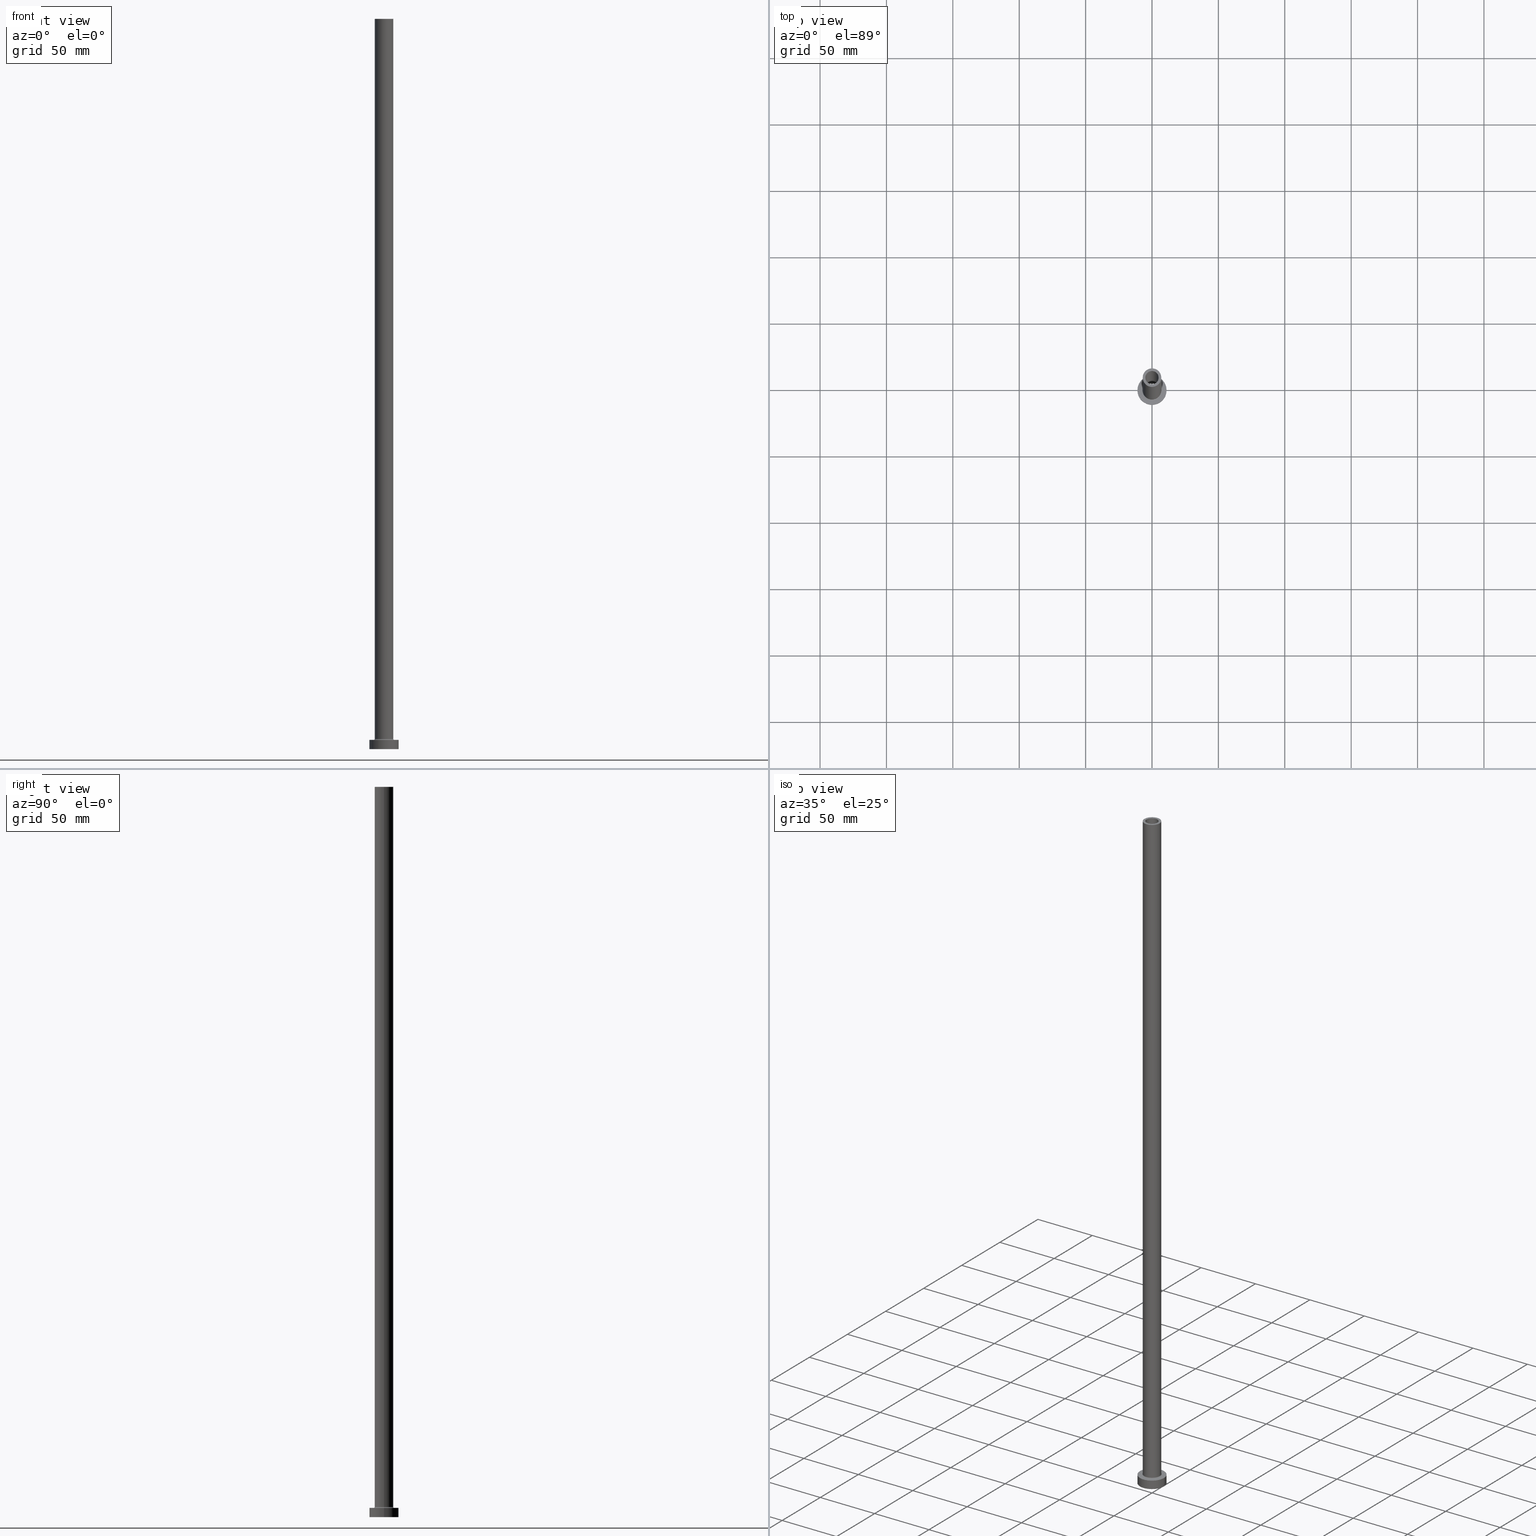
[diagram: canonical four-view strip — front | top / right | iso, engineering-drawing reading convention]
A machine part, canonical four-view strip (front | top / right | iso — engineering-drawing reading convention). The complete STEP part file that produces these views, byte-faithful:
ISO-10303-21;
HEADER;
FILE_DESCRIPTION (( 'STEP AP203' ),
    '1' );
FILE_NAME ('aa0b.STEP',
    '2023-02-13T10:05:54',
    ( '' ),
    ( '' ),
    'SwSTEP 2.0',
    'SolidWorks 2019',
    '' );
FILE_SCHEMA (( 'CONFIG_CONTROL_DESIGN' ));
ENDSEC;

DATA;
#1 = CYLINDRICAL_SURFACE ( 'NONE', #26, 7.000000000000000888 ) ;
#2 = DIRECTION ( 'NONE',  ( 1.000000000000000000, 0.000000000000000000, 0.000000000000000000 ) ) ;
#3 = CARTESIAN_POINT ( 'NONE',  ( 0.000000000000000000, 0.000000000000000000, 519.5663996924428147 ) ) ;
#4 = ORIENTED_EDGE ( 'NONE', *, *, #81, .T. ) ;
#5 =( GEOMETRIC_REPRESENTATION_CONTEXT ( 3 ) GLOBAL_UNCERTAINTY_ASSIGNED_CONTEXT ( ( #76 ) ) GLOBAL_UNIT_ASSIGNED_CONTEXT ( ( #242, #313, #129 ) ) REPRESENTATION_CONTEXT ( 'NONE', 'WORKASPACE' ) );
#6 = CARTESIAN_POINT ( 'NONE',  ( 0.000000000000000000, 0.000000000000000000, 505.0000000000000000 ) ) ;
#7 = CC_DESIGN_PERSON_AND_ORGANIZATION_ASSIGNMENT ( #439, #302, ( #15 ) ) ;
#8 = ORIENTED_EDGE ( 'NONE', *, *, #177, .T. ) ;
#9 = DIRECTION ( 'NONE',  ( 0.000000000000000000, 0.000000000000000000, 1.000000000000000000 ) ) ;
#10 = PERSON_AND_ORGANIZATION ( #275, #182 ) ;
#11 = ORIENTED_EDGE ( 'NONE', *, *, #377, .F. ) ;
#12 = COORDINATED_UNIVERSAL_TIME_OFFSET ( 1, 0, .AHEAD. ) ;
#13 = DIRECTION ( 'NONE',  ( 1.000000000000000000, 0.000000000000000000, -0.000000000000000000 ) ) ;
#14 = ADVANCED_FACE ( 'NONE', ( #134 ), #322, .F. ) ;
#15 = PRODUCT ( 'aa0b', 'aa0b', '', ( #158 ) ) ;
#16 = APPLICATION_CONTEXT ( 'configuration controlled 3d designs of mechanical parts and assemblies' ) ;
#17 = CIRCLE ( 'NONE', #260, 5.150000000000001243 ) ;
#18 = VECTOR ( 'NONE', #258, 1000.000000000000000 ) ;
#19 = APPLICATION_PROTOCOL_DEFINITION ( 'international standard', 'config_control_design', 1994, #16 ) ;
#20 = ORIENTED_EDGE ( 'NONE', *, *, #248, .T. ) ;
#21 = CALENDAR_DATE ( 2023, 13, 2 ) ;
#22 = DIRECTION ( 'NONE',  ( 1.000000000000000000, 0.000000000000000000, 0.000000000000000000 ) ) ;
#23 = ORIENTED_EDGE ( 'NONE', *, *, #363, .T. ) ;
#24 = CALENDAR_DATE ( 2023, 13, 2 ) ;
#25 = FACE_OUTER_BOUND ( 'NONE', #411, .T. ) ;
#26 = AXIS2_PLACEMENT_3D ( 'NONE', #291, #214, #427 ) ;
#27 = ADVANCED_FACE ( 'NONE', ( #33 ), #1, .T. ) ;
#28 = DIRECTION ( 'NONE',  ( 1.000000000000000000, 0.000000000000000000, 0.000000000000000000 ) ) ;
#29 = CARTESIAN_POINT ( 'NONE',  ( 0.000000000000000000, 0.000000000000000000, 505.0000000000000000 ) ) ;
#30 = VERTEX_POINT ( 'NONE', #167 ) ;
#31 = ORIENTED_EDGE ( 'NONE', *, *, #157, .T. ) ;
#32 = ORIENTED_EDGE ( 'NONE', *, *, #164, .T. ) ;
#33 = FACE_OUTER_BOUND ( 'NONE', #266, .T. ) ;
#34 = PERSON_AND_ORGANIZATION ( #275, #182 ) ;
#35 = CIRCLE ( 'NONE', #294, 5.000000000000000000 ) ;
#36 = DIRECTION ( 'NONE',  ( 0.000000000000000000, 0.000000000000000000, 1.000000000000000000 ) ) ;
#37 = CARTESIAN_POINT ( 'NONE',  ( 0.000000000000000000, 0.000000000000000000, 505.0000000000000000 ) ) ;
#38 = DIRECTION ( 'NONE',  ( 1.000000000000000000, 0.000000000000000000, -0.000000000000000000 ) ) ;
#39 = ADVANCED_FACE ( 'NONE', ( #105, #317 ), #454, .T. ) ;
#40 = PLANE ( 'NONE',  #110 ) ;
#41 = DIRECTION ( 'NONE',  ( -1.000000000000000000, 0.000000000000000000, 0.000000000000000000 ) ) ;
#42 = ORIENTED_EDGE ( 'NONE', *, *, #377, .T. ) ;
#43 = CARTESIAN_POINT ( 'NONE',  ( 0.000000000000000000, 0.000000000000000000, 519.5663996924428147 ) ) ;
#44 = EDGE_CURVE ( 'NONE', #196, #328, #87, .T. ) ;
#45 = ORIENTED_EDGE ( 'NONE', *, *, #89, .F. ) ;
#46 = CARTESIAN_POINT ( 'NONE',  ( -5.000000000000000000, 0.000000000000000000, 550.0000000000000000 ) ) ;
#47 = DIRECTION ( 'NONE',  ( -1.000000000000000000, 0.000000000000000000, 0.000000000000000000 ) ) ;
#48 = VECTOR ( 'NONE', #223, 1000.000000000000000 ) ;
#49 = FACE_OUTER_BOUND ( 'NONE', #63, .T. ) ;
#50 = ADVANCED_FACE ( 'NONE', ( #456 ), #136, .T. ) ;
#51 = CARTESIAN_POINT ( 'NONE',  ( 0.000000000000000000, 0.000000000000000000, 7.000000000000000000 ) ) ;
#52 = ORIENTED_EDGE ( 'NONE', *, *, #44, .F. ) ;
#53 = AXIS2_PLACEMENT_3D ( 'NONE', #171, #97, #383 ) ;
#54 = AXIS2_PLACEMENT_3D ( 'NONE', #72, #75, #257 ) ;
#55 = DIRECTION ( 'NONE',  ( 0.000000000000000000, 0.000000000000000000, 1.000000000000000000 ) ) ;
#56 = ADVANCED_FACE ( 'NONE', ( #327 ), #424, .F. ) ;
#57 = ORIENTED_EDGE ( 'NONE', *, *, #137, .F. ) ;
#58 = APPROVAL_STATUS ( 'not_yet_approved' ) ;
#59 = FACE_BOUND ( 'NONE', #449, .T. ) ;
#60 = EDGE_LOOP ( 'NONE', ( #372, #31, #280, #77 ) ) ;
#61 = DIRECTION ( 'NONE',  ( 1.000000000000000000, 0.000000000000000000, -0.000000000000000000 ) ) ;
#62 = AXIS2_PLACEMENT_3D ( 'NONE', #68, #213, #70 ) ;
#63 = EDGE_LOOP ( 'NONE', ( #295, #23, #8, #441 ) ) ;
#64 = APPROVAL ( #58, 'NEUR�EN�' ) ;
#65 = APPROVAL_STATUS ( 'not_yet_approved' ) ;
#66 = ORIENTED_EDGE ( 'NONE', *, *, #461, .T. ) ;
#67 = CIRCLE ( 'NONE', #202, 7.000000000000000888 ) ;
#68 = CARTESIAN_POINT ( 'NONE',  ( 0.000000000000000000, 0.000000000000000000, 0.000000000000000000 ) ) ;
#69 = ORIENTED_EDGE ( 'NONE', *, *, #157, .F. ) ;
#70 = DIRECTION ( 'NONE',  ( 1.000000000000000000, 0.000000000000000000, 0.000000000000000000 ) ) ;
#71 = EDGE_CURVE ( 'NONE', #339, #328, #193, .T. ) ;
#72 = CARTESIAN_POINT ( 'NONE',  ( 0.000000000000000000, 0.000000000000000000, 550.0000000000000000 ) ) ;
#73 = ORIENTED_EDGE ( 'NONE', *, *, #420, .F. ) ;
#74 = EDGE_CURVE ( 'NONE', #349, #382, #370, .T. ) ;
#75 = DIRECTION ( 'NONE',  ( 0.000000000000000000, 0.000000000000000000, 1.000000000000000000 ) ) ;
#76 = UNCERTAINTY_MEASURE_WITH_UNIT (LENGTH_MEASURE( 1.000000000000000082E-05 ), #242, 'distance_accuracy_value', 'NONE');
#77 = ORIENTED_EDGE ( 'NONE', *, *, #203, .F. ) ;
#78 = CARTESIAN_POINT ( 'NONE',  ( 0.000000000000000000, 0.000000000000000000, 7.700000000000040146 ) ) ;
#79 = DIRECTION ( 'NONE',  ( 0.000000000000000000, 0.000000000000000000, -1.000000000000000000 ) ) ;
#80 = CARTESIAN_POINT ( 'NONE',  ( -5.000000000000000000, 0.000000000000000000, 505.0000000000000000 ) ) ;
#81 = EDGE_CURVE ( 'NONE', #196, #396, #184, .T. ) ;
#82 = DATE_AND_TIME ( #232, #218 ) ;
#83 = ORIENTED_EDGE ( 'NONE', *, *, #305, .F. ) ;
#84 = ORIENTED_EDGE ( 'NONE', *, *, #248, .F. ) ;
#85 = COORDINATED_UNIVERSAL_TIME_OFFSET ( 1, 0, .AHEAD. ) ;
#86 = ORIENTED_EDGE ( 'NONE', *, *, #153, .T. ) ;
#87 = CIRCLE ( 'NONE', #53, 0.7000000000000000666 ) ;
#88 = DIRECTION ( 'NONE',  ( 0.000000000000000000, 0.000000000000000000, 1.000000000000000000 ) ) ;
#89 = EDGE_CURVE ( 'NONE', #274, #169, #346, .T. ) ;
#90 = FACE_BOUND ( 'NONE', #162, .T. ) ;
#91 = VERTEX_POINT ( 'NONE', #289 ) ;
#92 = CARTESIAN_POINT ( 'NONE',  ( -5.150000000000001243, 0.000000000000000000, 519.5663996924428147 ) ) ;
#93 = CC_DESIGN_DATE_AND_TIME_ASSIGNMENT ( #82, #367, ( #319 ) ) ;
#94 = DIRECTION ( 'NONE',  ( 0.000000000000000000, 0.000000000000000000, -1.000000000000000000 ) ) ;
#95 = VERTEX_POINT ( 'NONE', #208 ) ;
#96 = DIRECTION ( 'NONE',  ( -0.000000000000000000, -0.000000000000000000, -1.000000000000000000 ) ) ;
#97 = DIRECTION ( 'NONE',  ( 1.224646799147353207E-16, 1.000000000000000000, -0.000000000000000000 ) ) ;
#98 = DATE_AND_TIME ( #412, #191 ) ;
#99 = CARTESIAN_POINT ( 'NONE',  ( 0.000000000000000000, 0.000000000000000000, 7.000000000000000000 ) ) ;
#100 = CC_DESIGN_PERSON_AND_ORGANIZATION_ASSIGNMENT ( #442, #444, ( #259 ) ) ;
#101 = ORIENTED_EDGE ( 'NONE', *, *, #137, .T. ) ;
#102 = DIRECTION ( 'NONE',  ( 1.000000000000000000, 0.000000000000000000, 0.000000000000000000 ) ) ;
#103 = EDGE_CURVE ( 'NONE', #406, #154, #400, .T. ) ;
#104 = ORIENTED_EDGE ( 'NONE', *, *, #420, .T. ) ;
#105 = FACE_BOUND ( 'NONE', #446, .T. ) ;
#106 = DIRECTION ( 'NONE',  ( 0.000000000000000000, 0.000000000000000000, 1.000000000000000000 ) ) ;
#107 = APPLICATION_CONTEXT ( 'configuration controlled 3d designs of mechanical parts and assemblies' ) ;
#108 = EDGE_LOOP ( 'NONE', ( #69, #207, #212, #160 ) ) ;
#109 = AXIS2_PLACEMENT_3D ( 'NONE', #388, #384, #389 ) ;
#110 = AXIS2_PLACEMENT_3D ( 'NONE', #51, #263, #13 ) ;
#111 = DIRECTION ( 'NONE',  ( 0.000000000000000000, 0.000000000000000000, 1.000000000000000000 ) ) ;
#112 = ORIENTED_EDGE ( 'NONE', *, *, #153, .F. ) ;
#113 = CYLINDRICAL_SURFACE ( 'NONE', #308, 11.00000000000000000 ) ;
#114 = VERTEX_POINT ( 'NONE', #318 ) ;
#115 = FACE_OUTER_BOUND ( 'NONE', #108, .T. ) ;
#116 = CIRCLE ( 'NONE', #211, 5.150000000000001243 ) ;
#117 = EDGE_CURVE ( 'NONE', #95, #378, #364, .T. ) ;
#118 = PERSON_AND_ORGANIZATION ( #275, #182 ) ;
#119 = ORIENTED_EDGE ( 'NONE', *, *, #74, .T. ) ;
#120 = EDGE_LOOP ( 'NONE', ( #394, #32 ) ) ;
#121 = COORDINATED_UNIVERSAL_TIME_OFFSET ( 1, 0, .AHEAD. ) ;
#122 = PERSON_AND_ORGANIZATION_ROLE ( 'classification_officer' ) ;
#123 = LOCAL_TIME ( 11, 5, 54.00000000000000000, #268 ) ;
#124 = FACE_OUTER_BOUND ( 'NONE', #198, .T. ) ;
#125 = AXIS2_PLACEMENT_3D ( 'NONE', #99, #176, #102 ) ;
#126 = CALENDAR_DATE ( 2023, 13, 2 ) ;
#127 = CARTESIAN_POINT ( 'NONE',  ( 0.000000000000000000, 0.000000000000000000, 7.000000000000000000 ) ) ;
#128 = EDGE_LOOP ( 'NONE', ( #265, #42, #264, #179 ) ) ;
#129 =( NAMED_UNIT ( * ) SI_UNIT ( $, .STERADIAN. ) SOLID_ANGLE_UNIT ( ) );
#130 = DIRECTION ( 'NONE',  ( -0.000000000000000000, -0.000000000000000000, -1.000000000000000000 ) ) ;
#131 = CLOSED_SHELL ( 'NONE', ( #14, #399, #347, #27, #352, #50, #413, #255, #227, #39, #323, #448, #237, #56 ) ) ;
#132 = CIRCLE ( 'NONE', #279, 5.150000000000001243 ) ;
#133 = CARTESIAN_POINT ( 'NONE',  ( 11.00000000000000000, 1.347111479062088405E-15, 7.000000000000000000 ) ) ;
#134 = FACE_OUTER_BOUND ( 'NONE', #128, .T. ) ;
#135 = DIRECTION ( 'NONE',  ( 0.000000000000000000, 0.000000000000000000, 1.000000000000000000 ) ) ;
#136 = CYLINDRICAL_SURFACE ( 'NONE', #337, 11.00000000000000000 ) ;
#137 = EDGE_CURVE ( 'NONE', #396, #196, #67, .T. ) ;
#138 = DIRECTION ( 'NONE',  ( -1.000000000000000000, 0.000000000000000000, 0.000000000000000000 ) ) ;
#139 = ORIENTED_EDGE ( 'NONE', *, *, #366, .F. ) ;
#140 = AXIS2_PLACEMENT_3D ( 'NONE', #142, #455, #138 ) ;
#141 = CARTESIAN_POINT ( 'NONE',  ( 0.000000000000000000, 0.000000000000000000, 7.000000000000000000 ) ) ;
#142 = CARTESIAN_POINT ( 'NONE',  ( 0.000000000000000000, 0.000000000000000000, 550.0000000000000000 ) ) ;
#143 = CARTESIAN_POINT ( 'NONE',  ( 0.000000000000000000, 0.000000000000000000, 7.700000000000040146 ) ) ;
#144 = LINE ( 'NONE', #402, #452 ) ;
#145 = CC_DESIGN_PERSON_AND_ORGANIZATION_ASSIGNMENT ( #118, #270, ( #319 ) ) ;
#146 = FACE_OUTER_BOUND ( 'NONE', #387, .T. ) ;
#147 = EDGE_LOOP ( 'NONE', ( #11, #311, #373, #288 ) ) ;
#148 = CIRCLE ( 'NONE', #358, 11.00000000000000000 ) ;
#149 = DIRECTION ( 'NONE',  ( -0.000000000000000000, -0.000000000000000000, -1.000000000000000000 ) ) ;
#150 = CARTESIAN_POINT ( 'NONE',  ( 0.000000000000000000, 0.000000000000000000, 550.0000000000000000 ) ) ;
#151 = ORIENTED_EDGE ( 'NONE', *, *, #71, .F. ) ;
#152 = APPROVAL_DATE_TIME ( #261, #386 ) ;
#153 = EDGE_CURVE ( 'NONE', #183, #217, #175, .T. ) ;
#154 = VERTEX_POINT ( 'NONE', #355 ) ;
#155 = APPROVAL_ROLE ( '' ) ;
#156 = AXIS2_PLACEMENT_3D ( 'NONE', #163, #88, #61 ) ;
#157 = EDGE_CURVE ( 'NONE', #114, #274, #324, .T. ) ;
#158 = MECHANICAL_CONTEXT ( 'NONE', #16, 'mechanical' ) ;
#159 = DIRECTION ( 'NONE',  ( 0.000000000000000000, 0.000000000000000000, 1.000000000000000000 ) ) ;
#160 = ORIENTED_EDGE ( 'NONE', *, *, #186, .T. ) ;
#161 = DIRECTION ( 'NONE',  ( 0.000000000000000000, 0.000000000000000000, 1.000000000000000000 ) ) ;
#162 = EDGE_LOOP ( 'NONE', ( #361, #45 ) ) ;
#163 = CARTESIAN_POINT ( 'NONE',  ( 0.000000000000000000, 0.000000000000000000, 505.0000000000000000 ) ) ;
#164 = EDGE_CURVE ( 'NONE', #210, #30, #148, .T. ) ;
#165 = CC_DESIGN_APPROVAL ( #284, ( #437 ) ) ;
#166 = VECTOR ( 'NONE', #201, 1000.000000000000000 ) ;
#167 = CARTESIAN_POINT ( 'NONE',  ( -11.00000000000000000, 0.000000000000000000, 7.000000000000000000 ) ) ;
#168 = DIRECTION ( 'NONE',  ( 1.000000000000000000, 0.000000000000000000, 0.000000000000000000 ) ) ;
#169 = VERTEX_POINT ( 'NONE', #244 ) ;
#170 = DIRECTION ( 'NONE',  ( 1.000000000000000000, 0.000000000000000000, 0.000000000000000000 ) ) ;
#171 = CARTESIAN_POINT ( 'NONE',  ( -7.700000000000001066, 9.429780353434621002E-16, 7.700000000000040146 ) ) ;
#172 = DIRECTION ( 'NONE',  ( 0.000000000000000000, 0.000000000000000000, 1.000000000000000000 ) ) ;
#173 = APPROVAL_PERSON_ORGANIZATION ( #34, #284, #344 ) ;
#174 = DIRECTION ( 'NONE',  ( -0.000000000000000000, -0.000000000000000000, -1.000000000000000000 ) ) ;
#175 = CIRCLE ( 'NONE', #459, 11.00000000000000000 ) ;
#176 = DIRECTION ( 'NONE',  ( -0.000000000000000000, -0.000000000000000000, -1.000000000000000000 ) ) ;
#177 = EDGE_CURVE ( 'NONE', #217, #183, #219, .T. ) ;
#178 = FACE_BOUND ( 'NONE', #430, .T. ) ;
#179 = ORIENTED_EDGE ( 'NONE', *, *, #433, .F. ) ;
#180 = CARTESIAN_POINT ( 'NONE',  ( 7.700000000000001066, 0.000000000000000000, 7.000000000000020428 ) ) ;
#181 = DIRECTION ( 'NONE',  ( 1.000000000000000000, 0.000000000000000000, 0.000000000000000000 ) ) ;
#182 = ORGANIZATION ( 'NEUR�EN�', 'NEUR�EN�', '' ) ;
#183 = VERTEX_POINT ( 'NONE', #314 ) ;
#184 = CIRCLE ( 'NONE', #351, 7.000000000000000888 ) ;
#185 = CARTESIAN_POINT ( 'NONE',  ( 0.000000000000000000, 0.000000000000000000, 7.700000000000040146 ) ) ;
#186 = EDGE_CURVE ( 'NONE', #169, #274, #17, .T. ) ;
#187 = APPLICATION_PROTOCOL_DEFINITION ( 'international standard', 'config_control_design', 1994, #107 ) ;
#188 = DIRECTION ( 'NONE',  ( 1.000000000000000000, 0.000000000000000000, 0.000000000000000000 ) ) ;
#189 = DIRECTION ( 'NONE',  ( 0.000000000000000000, 0.000000000000000000, 1.000000000000000000 ) ) ;
#190 = CARTESIAN_POINT ( 'NONE',  ( 0.000000000000000000, 0.000000000000000000, 7.000000000000000000 ) ) ;
#191 = LOCAL_TIME ( 11, 5, 54.00000000000000000, #450 ) ;
#192 = CARTESIAN_POINT ( 'NONE',  ( 0.000000000000000000, 0.000000000000000000, 0.000000000000000000 ) ) ;
#193 = CIRCLE ( 'NONE', #125, 7.700000000000001066 ) ;
#194 = CC_DESIGN_DATE_AND_TIME_ASSIGNMENT ( #409, #205, ( #437 ) ) ;
#195 = CIRCLE ( 'NONE', #316, 7.700000000000001066 ) ;
#196 = VERTEX_POINT ( 'NONE', #375 ) ;
#197 = DIRECTION ( 'NONE',  ( 0.000000000000000000, 0.000000000000000000, -1.000000000000000000 ) ) ;
#198 = EDGE_LOOP ( 'NONE', ( #350, #419 ) ) ;
#199 = APPROVAL_DATE_TIME ( #98, #284 ) ;
#200 = LOCAL_TIME ( 11, 5, 54.00000000000000000, #12 ) ;
#201 = DIRECTION ( 'NONE',  ( -0.000000000000000000, -0.000000000000000000, -1.000000000000000000 ) ) ;
#202 = AXIS2_PLACEMENT_3D ( 'NONE', #321, #421, #457 ) ;
#203 = EDGE_CURVE ( 'NONE', #91, #169, #345, .T. ) ;
#204 = CARTESIAN_POINT ( 'NONE',  ( 0.000000000000000000, 0.000000000000000000, 0.000000000000000000 ) ) ;
#205 = DATE_TIME_ROLE ( 'classification_date' ) ;
#206 = FACE_OUTER_BOUND ( 'NONE', #425, .T. ) ;
#207 = ORIENTED_EDGE ( 'NONE', *, *, #371, .T. ) ;
#208 = CARTESIAN_POINT ( 'NONE',  ( 5.000000000000000000, 6.123233995736766282E-16, 505.0000000000000000 ) ) ;
#209 = PRODUCT_RELATED_PRODUCT_CATEGORY ( 'detail', '', ( #15 ) ) ;
#210 = VERTEX_POINT ( 'NONE', #133 ) ;
#211 = AXIS2_PLACEMENT_3D ( 'NONE', #29, #159, #312 ) ;
#212 = ORIENTED_EDGE ( 'NONE', *, *, #203, .T. ) ;
#213 = DIRECTION ( 'NONE',  ( -0.000000000000000000, -0.000000000000000000, -1.000000000000000000 ) ) ;
#214 = DIRECTION ( 'NONE',  ( -0.000000000000000000, -0.000000000000000000, -1.000000000000000000 ) ) ;
#215 = CARTESIAN_POINT ( 'NONE',  ( 0.000000000000000000, 0.000000000000000000, 550.0000000000000000 ) ) ;
#216 = ADVANCED_BREP_SHAPE_REPRESENTATION ( 'aa0b', ( #267, #293 ), #5 ) ;
#217 = VERTEX_POINT ( 'NONE', #416 ) ;
#218 = LOCAL_TIME ( 11, 5, 54.00000000000000000, #85 ) ;
#219 = CIRCLE ( 'NONE', #392, 11.00000000000000000 ) ;
#220 = CARTESIAN_POINT ( 'NONE',  ( 0.000000000000000000, 0.000000000000000000, 505.0000000000000000 ) ) ;
#221 = EDGE_LOOP ( 'NONE', ( #66, #119 ) ) ;
#222 = DIRECTION ( 'NONE',  ( 0.000000000000000000, 0.000000000000000000, 1.000000000000000000 ) ) ;
#223 = DIRECTION ( 'NONE',  ( -0.000000000000000000, -0.000000000000000000, -1.000000000000000000 ) ) ;
#224 = DIRECTION ( 'NONE',  ( 0.000000000000000000, 0.000000000000000000, -1.000000000000000000 ) ) ;
#225 = EDGE_CURVE ( 'NONE', #91, #114, #116, .T. ) ;
#226 = AXIS2_PLACEMENT_3D ( 'NONE', #281, #36, #38 ) ;
#227 = ADVANCED_FACE ( 'NONE', ( #25 ), #418, .T. ) ;
#228 = ORIENTED_EDGE ( 'NONE', *, *, #343, .T. ) ;
#229 = AXIS2_PLACEMENT_3D ( 'NONE', #150, #111, #181 ) ;
#230 = CIRCLE ( 'NONE', #417, 11.00000000000000000 ) ;
#231 = ORIENTED_EDGE ( 'NONE', *, *, #117, .T. ) ;
#232 = CALENDAR_DATE ( 2023, 13, 2 ) ;
#233 = DIRECTION ( 'NONE',  ( 1.000000000000000000, 0.000000000000000000, -0.000000000000000000 ) ) ;
#234 = EDGE_LOOP ( 'NONE', ( #52, #57, #299, #73 ) ) ;
#235 = PERSON_AND_ORGANIZATION_ROLE ( 'creator' ) ;
#236 = CARTESIAN_POINT ( 'NONE',  ( 5.150000000000001243, 6.306931015608869596E-16, 0.000000000000000000 ) ) ;
#237 = ADVANCED_FACE ( 'NONE', ( #59, #124 ), #269, .F. ) ;
#238 = ORIENTED_EDGE ( 'NONE', *, *, #177, .F. ) ;
#239 = CARTESIAN_POINT ( 'NONE',  ( 0.000000000000000000, 0.000000000000000000, 0.000000000000000000 ) ) ;
#240 = AXIS2_PLACEMENT_3D ( 'NONE', #277, #55, #233 ) ;
#241 = SHAPE_DEFINITION_REPRESENTATION ( #310, #216 ) ;
#242 =( LENGTH_UNIT ( ) NAMED_UNIT ( * ) SI_UNIT ( .MILLI., .METRE. ) );
#243 = DIRECTION ( 'NONE',  ( 0.000000000000000000, -1.000000000000000000, 0.000000000000000000 ) ) ;
#244 = CARTESIAN_POINT ( 'NONE',  ( -5.150000000000001243, 0.000000000000000000, 0.000000000000000000 ) ) ;
#245 = DIRECTION ( 'NONE',  ( 1.000000000000000000, 0.000000000000000000, 0.000000000000000000 ) ) ;
#246 = AXIS2_PLACEMENT_3D ( 'NONE', #37, #282, #170 ) ;
#247 = DIRECTION ( 'NONE',  ( 1.000000000000000000, 0.000000000000000000, 0.000000000000000000 ) ) ;
#248 = EDGE_CURVE ( 'NONE', #382, #196, #408, .T. ) ;
#249 = DIRECTION ( 'NONE',  ( 0.000000000000000000, 0.000000000000000000, -1.000000000000000000 ) ) ;
#250 = CARTESIAN_POINT ( 'NONE',  ( -7.700000000000001066, 9.429780353434621002E-16, 7.000000000000020428 ) ) ;
#251 = AXIS2_PLACEMENT_3D ( 'NONE', #185, #329, #2 ) ;
#252 = VECTOR ( 'NONE', #398, 1000.000000000000000 ) ;
#253 = DESIGN_CONTEXT ( 'detailed design', #107, 'design' ) ;
#254 = ORIENTED_EDGE ( 'NONE', *, *, #44, .T. ) ;
#255 = ADVANCED_FACE ( 'NONE', ( #90, #206 ), #374, .F. ) ;
#256 = LINE ( 'NONE', #296, #252 ) ;
#257 = DIRECTION ( 'NONE',  ( 1.000000000000000000, 0.000000000000000000, 0.000000000000000000 ) ) ;
#258 = DIRECTION ( 'NONE',  ( 0.000000000000000000, 0.000000000000000000, -1.000000000000000000 ) ) ;
#259 = PRODUCT_DEFINITION_FORMATION_WITH_SPECIFIED_SOURCE ( 'LIBOVOLN�', '', #15, .NOT_KNOWN. ) ;
#260 = AXIS2_PLACEMENT_3D ( 'NONE', #239, #130, #22 ) ;
#261 = DATE_AND_TIME ( #24, #368 ) ;
#262 = APPROVAL_DATE_TIME ( #336, #64 ) ;
#263 = DIRECTION ( 'NONE',  ( 0.000000000000000000, 0.000000000000000000, 1.000000000000000000 ) ) ;
#264 = ORIENTED_EDGE ( 'NONE', *, *, #343, .F. ) ;
#265 = ORIENTED_EDGE ( 'NONE', *, *, #103, .T. ) ;
#266 = EDGE_LOOP ( 'NONE', ( #404, #380, #101, #84 ) ) ;
#267 = MANIFOLD_SOLID_BREP ( 'Odebrat vysunut�m4', #131 ) ;
#268 = COORDINATED_UNIVERSAL_TIME_OFFSET ( 1, 0, .AHEAD. ) ;
#269 = PLANE ( 'NONE',  #156 ) ;
#270 = PERSON_AND_ORGANIZATION_ROLE ( 'creator' ) ;
#271 = DIRECTION ( 'NONE',  ( 0.000000000000000000, 0.000000000000000000, 1.000000000000000000 ) ) ;
#272 = EDGE_CURVE ( 'NONE', #396, #339, #315, .T. ) ;
#273 = CARTESIAN_POINT ( 'NONE',  ( -11.00000000000000000, 0.000000000000000000, 7.000000000000000000 ) ) ;
#274 = VERTEX_POINT ( 'NONE', #236 ) ;
#275 = PERSON ( 'NEUR�EN�', 'NEUR�EN�', 'NEUR�EN�', ('NEUR�EN�'), ('NEUR�EN�'), ('NEUR�EN�') ) ;
#276 = ORIENTED_EDGE ( 'NONE', *, *, #103, .F. ) ;
#277 = CARTESIAN_POINT ( 'NONE',  ( 0.000000000000000000, 0.000000000000000000, 0.000000000000000000 ) ) ;
#278 = AXIS2_PLACEMENT_3D ( 'NONE', #215, #172, #168 ) ;
#279 = AXIS2_PLACEMENT_3D ( 'NONE', #220, #222, #188 ) ;
#280 = ORIENTED_EDGE ( 'NONE', *, *, #89, .T. ) ;
#281 = CARTESIAN_POINT ( 'NONE',  ( 0.000000000000000000, 0.000000000000000000, 550.0000000000000000 ) ) ;
#282 = DIRECTION ( 'NONE',  ( 0.000000000000000000, 0.000000000000000000, 1.000000000000000000 ) ) ;
#283 = DIRECTION ( 'NONE',  ( 0.000000000000000000, 0.000000000000000000, 1.000000000000000000 ) ) ;
#284 = APPROVAL ( #65, 'NEUR�EN�' ) ;
#285 = DIRECTION ( 'NONE',  ( -1.000000000000000000, 0.000000000000000000, 0.000000000000000000 ) ) ;
#286 = DIRECTION ( 'NONE',  ( 0.000000000000000000, 0.000000000000000000, -1.000000000000000000 ) ) ;
#287 = EDGE_CURVE ( 'NONE', #30, #183, #379, .T. ) ;
#288 = ORIENTED_EDGE ( 'NONE', *, *, #117, .F. ) ;
#289 = CARTESIAN_POINT ( 'NONE',  ( -5.150000000000001243, 0.000000000000000000, 505.0000000000000000 ) ) ;
#290 = CYLINDRICAL_SURFACE ( 'NONE', #369, 5.150000000000001243 ) ;
#291 = CARTESIAN_POINT ( 'NONE',  ( 0.000000000000000000, 0.000000000000000000, 550.0000000000000000 ) ) ;
#292 = CARTESIAN_POINT ( 'NONE',  ( 7.000000000000000888, 8.572527594031474176E-16, 550.0000000000000000 ) ) ;
#293 = AXIS2_PLACEMENT_3D ( 'NONE', #192, #189, #401 ) ;
#294 = AXIS2_PLACEMENT_3D ( 'NONE', #6, #9, #365 ) ;
#295 = ORIENTED_EDGE ( 'NONE', *, *, #164, .F. ) ;
#296 = CARTESIAN_POINT ( 'NONE',  ( 5.000000000000000000, 6.123233995736766282E-16, 550.0000000000000000 ) ) ;
#297 = SECURITY_CLASSIFICATION_LEVEL ( 'unclassified' ) ;
#298 = DIRECTION ( 'NONE',  ( -0.000000000000000000, -0.000000000000000000, -1.000000000000000000 ) ) ;
#299 = ORIENTED_EDGE ( 'NONE', *, *, #272, .T. ) ;
#300 = APPROVAL_PERSON_ORGANIZATION ( #410, #386, #155 ) ;
#301 = DIRECTION ( 'NONE',  ( 1.000000000000000000, 0.000000000000000000, 0.000000000000000000 ) ) ;
#302 = PERSON_AND_ORGANIZATION_ROLE ( 'design_owner' ) ;
#303 = ORIENTED_EDGE ( 'NONE', *, *, #81, .F. ) ;
#304 = PERSON_AND_ORGANIZATION ( #275, #182 ) ;
#305 = EDGE_CURVE ( 'NONE', #30, #210, #230, .T. ) ;
#306 = APPROVAL_ROLE ( '' ) ;
#307 = DIRECTION ( 'NONE',  ( 1.000000000000000000, 0.000000000000000000, 0.000000000000000000 ) ) ;
#308 = AXIS2_PLACEMENT_3D ( 'NONE', #391, #298, #395 ) ;
#309 = CARTESIAN_POINT ( 'NONE',  ( -7.000000000000000888, 0.000000000000000000, 550.0000000000000000 ) ) ;
#310 = PRODUCT_DEFINITION_SHAPE ( 'NONE', 'NONE',  #319 ) ;
#311 = ORIENTED_EDGE ( 'NONE', *, *, #366, .T. ) ;
#312 = DIRECTION ( 'NONE',  ( 1.000000000000000000, 0.000000000000000000, 0.000000000000000000 ) ) ;
#313 =( NAMED_UNIT ( * ) PLANE_ANGLE_UNIT ( ) SI_UNIT ( $, .RADIAN. ) );
#314 = CARTESIAN_POINT ( 'NONE',  ( -11.00000000000000000, 0.000000000000000000, 0.000000000000000000 ) ) ;
#315 = CIRCLE ( 'NONE', #451, 0.7000000000000000666 ) ;
#316 = AXIS2_PLACEMENT_3D ( 'NONE', #190, #403, #301 ) ;
#317 = FACE_OUTER_BOUND ( 'NONE', #221, .T. ) ;
#318 = CARTESIAN_POINT ( 'NONE',  ( 5.150000000000001243, 6.306931015608869596E-16, 505.0000000000000000 ) ) ;
#319 = PRODUCT_DEFINITION ( 'NEZN�M�', '', #259, #253 ) ;
#320 = CARTESIAN_POINT ( 'NONE',  ( 0.000000000000000000, 0.000000000000000000, 550.0000000000000000 ) ) ;
#321 = CARTESIAN_POINT ( 'NONE',  ( 0.000000000000000000, 0.000000000000000000, 7.700000000000040146 ) ) ;
#322 = CYLINDRICAL_SURFACE ( 'NONE', #429, 5.000000000000000000 ) ;
#323 = ADVANCED_FACE ( 'NONE', ( #447 ), #415, .F. ) ;
#324 = LINE ( 'NONE', #458, #385 ) ;
#325 = APPROVAL_PERSON_ORGANIZATION ( #340, #64, #306 ) ;
#326 = VECTOR ( 'NONE', #94, 1000.000000000000000 ) ;
#327 = FACE_OUTER_BOUND ( 'NONE', #147, .T. ) ;
#328 = VERTEX_POINT ( 'NONE', #250 ) ;
#329 = DIRECTION ( 'NONE',  ( 0.000000000000000000, 0.000000000000000000, 1.000000000000000000 ) ) ;
#330 = CARTESIAN_POINT ( 'NONE',  ( 7.000000000000000888, 8.572527594031474176E-16, 550.0000000000000000 ) ) ;
#331 = AXIS2_PLACEMENT_3D ( 'NONE', #78, #434, #334 ) ;
#332 = ORIENTED_EDGE ( 'NONE', *, *, #71, .T. ) ;
#333 = CC_DESIGN_PERSON_AND_ORGANIZATION_ASSIGNMENT ( #304, #235, ( #259 ) ) ;
#334 = DIRECTION ( 'NONE',  ( 1.000000000000000000, 0.000000000000000000, 0.000000000000000000 ) ) ;
#335 = CARTESIAN_POINT ( 'NONE',  ( -5.000000000000000000, 0.000000000000000000, 550.0000000000000000 ) ) ;
#336 = DATE_AND_TIME ( #21, #200 ) ;
#337 = AXIS2_PLACEMENT_3D ( 'NONE', #422, #174, #285 ) ;
#338 = CIRCLE ( 'NONE', #54, 5.000000000000000000 ) ;
#339 = VERTEX_POINT ( 'NONE', #180 ) ;
#340 = PERSON_AND_ORGANIZATION ( #275, #182 ) ;
#341 = CARTESIAN_POINT ( 'NONE',  ( 0.000000000000000000, 0.000000000000000000, 550.0000000000000000 ) ) ;
#342 = EDGE_LOOP ( 'NONE', ( #460, #83, #440, #86 ) ) ;
#343 = EDGE_CURVE ( 'NONE', #378, #95, #35, .T. ) ;
#344 = APPROVAL_ROLE ( '' ) ;
#345 = LINE ( 'NONE', #92, #326 ) ;
#346 = CIRCLE ( 'NONE', #62, 5.150000000000001243 ) ;
#347 = ADVANCED_FACE ( 'NONE', ( #146 ), #407, .F. ) ;
#348 = DIRECTION ( 'NONE',  ( -1.000000000000000000, 0.000000000000000000, 0.000000000000000000 ) ) ;
#349 = VERTEX_POINT ( 'NONE', #292 ) ;
#350 = ORIENTED_EDGE ( 'NONE', *, *, #225, .F. ) ;
#351 = AXIS2_PLACEMENT_3D ( 'NONE', #143, #135, #245 ) ;
#352 = ADVANCED_FACE ( 'NONE', ( #49 ), #113, .T. ) ;
#353 = EDGE_CURVE ( 'NONE', #349, #396, #426, .T. ) ;
#354 = ORIENTED_EDGE ( 'NONE', *, *, #353, .F. ) ;
#355 = CARTESIAN_POINT ( 'NONE',  ( 5.000000000000000000, 6.123233995736766282E-16, 550.0000000000000000 ) ) ;
#356 = ORIENTED_EDGE ( 'NONE', *, *, #461, .F. ) ;
#357 = CYLINDRICAL_SURFACE ( 'NONE', #393, 5.150000000000001243 ) ;
#358 = AXIS2_PLACEMENT_3D ( 'NONE', #141, #106, #247 ) ;
#359 = ORIENTED_EDGE ( 'NONE', *, *, #272, .F. ) ;
#360 = FACE_OUTER_BOUND ( 'NONE', #60, .T. ) ;
#361 = ORIENTED_EDGE ( 'NONE', *, *, #186, .F. ) ;
#362 = DIRECTION ( 'NONE',  ( -1.000000000000000000, 0.000000000000000000, 0.000000000000000000 ) ) ;
#363 = EDGE_CURVE ( 'NONE', #210, #217, #144, .T. ) ;
#364 = CIRCLE ( 'NONE', #246, 5.000000000000000000 ) ;
#365 = DIRECTION ( 'NONE',  ( 1.000000000000000000, 0.000000000000000000, 0.000000000000000000 ) ) ;
#366 = EDGE_CURVE ( 'NONE', #154, #406, #338, .T. ) ;
#367 = DATE_TIME_ROLE ( 'creation_date' ) ;
#368 = LOCAL_TIME ( 11, 5, 54.00000000000000000, #121 ) ;
#369 = AXIS2_PLACEMENT_3D ( 'NONE', #3, #224, #47 ) ;
#370 = CIRCLE ( 'NONE', #109, 7.000000000000000888 ) ;
#371 = EDGE_CURVE ( 'NONE', #114, #91, #132, .T. ) ;
#372 = ORIENTED_EDGE ( 'NONE', *, *, #225, .T. ) ;
#373 = ORIENTED_EDGE ( 'NONE', *, *, #433, .T. ) ;
#374 = PLANE ( 'NONE',  #240 ) ;
#375 = CARTESIAN_POINT ( 'NONE',  ( -7.000000000000000888, 0.000000000000000000, 7.700000000000040146 ) ) ;
#376 = AXIS2_PLACEMENT_3D ( 'NONE', #341, #443, #348 ) ;
#377 = EDGE_CURVE ( 'NONE', #154, #95, #256, .T. ) ;
#378 = VERTEX_POINT ( 'NONE', #80 ) ;
#379 = LINE ( 'NONE', #273, #166 ) ;
#380 = ORIENTED_EDGE ( 'NONE', *, *, #353, .T. ) ;
#381 = CARTESIAN_POINT ( 'NONE',  ( 0.000000000000000000, 0.000000000000000000, 0.000000000000000000 ) ) ;
#382 = VERTEX_POINT ( 'NONE', #397 ) ;
#383 = DIRECTION ( 'NONE',  ( -1.000000000000000000, 1.224646799147351975E-16, 0.000000000000000000 ) ) ;
#384 = DIRECTION ( 'NONE',  ( 0.000000000000000000, 0.000000000000000000, 1.000000000000000000 ) ) ;
#385 = VECTOR ( 'NONE', #286, 1000.000000000000000 ) ;
#386 = APPROVAL ( #435, 'NEUR�EN�' ) ;
#387 = EDGE_LOOP ( 'NONE', ( #303, #254, #151, #359 ) ) ;
#388 = CARTESIAN_POINT ( 'NONE',  ( 0.000000000000000000, 0.000000000000000000, 550.0000000000000000 ) ) ;
#389 = DIRECTION ( 'NONE',  ( 1.000000000000000000, 0.000000000000000000, 0.000000000000000000 ) ) ;
#390 = CC_DESIGN_SECURITY_CLASSIFICATION ( #437, ( #259 ) ) ;
#391 = CARTESIAN_POINT ( 'NONE',  ( 0.000000000000000000, 0.000000000000000000, 7.000000000000000000 ) ) ;
#392 = AXIS2_PLACEMENT_3D ( 'NONE', #204, #161, #307 ) ;
#393 = AXIS2_PLACEMENT_3D ( 'NONE', #43, #79, #362 ) ;
#394 = ORIENTED_EDGE ( 'NONE', *, *, #305, .T. ) ;
#395 = DIRECTION ( 'NONE',  ( -1.000000000000000000, 0.000000000000000000, 0.000000000000000000 ) ) ;
#396 = VERTEX_POINT ( 'NONE', #432 ) ;
#397 = CARTESIAN_POINT ( 'NONE',  ( -7.000000000000000888, 0.000000000000000000, 550.0000000000000000 ) ) ;
#398 = DIRECTION ( 'NONE',  ( 0.000000000000000000, 0.000000000000000000, -1.000000000000000000 ) ) ;
#399 = ADVANCED_FACE ( 'NONE', ( #360 ), #357, .F. ) ;
#400 = CIRCLE ( 'NONE', #278, 5.000000000000000000 ) ;
#401 = DIRECTION ( 'NONE',  ( 1.000000000000000000, 0.000000000000000000, 0.000000000000000000 ) ) ;
#402 = CARTESIAN_POINT ( 'NONE',  ( 11.00000000000000000, 1.347111479062088405E-15, 7.000000000000000000 ) ) ;
#403 = DIRECTION ( 'NONE',  ( -0.000000000000000000, -0.000000000000000000, -1.000000000000000000 ) ) ;
#404 = ORIENTED_EDGE ( 'NONE', *, *, #74, .F. ) ;
#405 = CC_DESIGN_APPROVAL ( #64, ( #259 ) ) ;
#406 = VERTEX_POINT ( 'NONE', #46 ) ;
#407 = TOROIDAL_SURFACE ( 'NONE', #331, 7.700000000000001066, 0.6999999999999999556 ) ;
#408 = LINE ( 'NONE', #309, #438 ) ;
#409 = DATE_AND_TIME ( #126, #123 ) ;
#410 = PERSON_AND_ORGANIZATION ( #275, #182 ) ;
#411 = EDGE_LOOP ( 'NONE', ( #354, #356, #20, #4 ) ) ;
#412 = CALENDAR_DATE ( 2023, 13, 2 ) ;
#413 = ADVANCED_FACE ( 'NONE', ( #178, #436 ), #40, .T. ) ;
#414 = CC_DESIGN_APPROVAL ( #386, ( #319 ) ) ;
#415 = TOROIDAL_SURFACE ( 'NONE', #251, 7.700000000000001066, 0.6999999999999999556 ) ;
#416 = CARTESIAN_POINT ( 'NONE',  ( 11.00000000000000000, 1.347111479062088405E-15, 0.000000000000000000 ) ) ;
#417 = AXIS2_PLACEMENT_3D ( 'NONE', #127, #271, #28 ) ;
#418 = CYLINDRICAL_SURFACE ( 'NONE', #376, 7.000000000000000888 ) ;
#419 = ORIENTED_EDGE ( 'NONE', *, *, #371, .F. ) ;
#420 = EDGE_CURVE ( 'NONE', #328, #339, #195, .T. ) ;
#421 = DIRECTION ( 'NONE',  ( 0.000000000000000000, 0.000000000000000000, 1.000000000000000000 ) ) ;
#422 = CARTESIAN_POINT ( 'NONE',  ( 0.000000000000000000, 0.000000000000000000, 7.000000000000000000 ) ) ;
#423 = DIRECTION ( 'NONE',  ( 1.000000000000000000, 0.000000000000000000, 0.000000000000000000 ) ) ;
#424 = CYLINDRICAL_SURFACE ( 'NONE', #140, 5.000000000000000000 ) ;
#425 = EDGE_LOOP ( 'NONE', ( #112, #238 ) ) ;
#426 = LINE ( 'NONE', #330, #48 ) ;
#427 = DIRECTION ( 'NONE',  ( -1.000000000000000000, 0.000000000000000000, 0.000000000000000000 ) ) ;
#428 = CIRCLE ( 'NONE', #229, 7.000000000000000888 ) ;
#429 = AXIS2_PLACEMENT_3D ( 'NONE', #320, #249, #41 ) ;
#430 = EDGE_LOOP ( 'NONE', ( #332, #104 ) ) ;
#431 = CC_DESIGN_PERSON_AND_ORGANIZATION_ASSIGNMENT ( #10, #122, ( #437 ) ) ;
#432 = CARTESIAN_POINT ( 'NONE',  ( 7.000000000000000888, 8.572527594031474176E-16, 7.700000000000040146 ) ) ;
#433 = EDGE_CURVE ( 'NONE', #406, #378, #453, .T. ) ;
#434 = DIRECTION ( 'NONE',  ( 0.000000000000000000, 0.000000000000000000, 1.000000000000000000 ) ) ;
#435 = APPROVAL_STATUS ( 'not_yet_approved' ) ;
#436 = FACE_OUTER_BOUND ( 'NONE', #120, .T. ) ;
#437 = SECURITY_CLASSIFICATION ( '', '', #297 ) ;
#438 = VECTOR ( 'NONE', #96, 1000.000000000000000 ) ;
#439 = PERSON_AND_ORGANIZATION ( #275, #182 ) ;
#440 = ORIENTED_EDGE ( 'NONE', *, *, #287, .T. ) ;
#441 = ORIENTED_EDGE ( 'NONE', *, *, #287, .F. ) ;
#442 = PERSON_AND_ORGANIZATION ( #275, #182 ) ;
#443 = DIRECTION ( 'NONE',  ( -0.000000000000000000, -0.000000000000000000, -1.000000000000000000 ) ) ;
#444 = PERSON_AND_ORGANIZATION_ROLE ( 'design_supplier' ) ;
#445 = CARTESIAN_POINT ( 'NONE',  ( 7.700000000000001066, 0.000000000000000000, 7.700000000000040146 ) ) ;
#446 = EDGE_LOOP ( 'NONE', ( #276, #139 ) ) ;
#447 = FACE_OUTER_BOUND ( 'NONE', #234, .T. ) ;
#448 = ADVANCED_FACE ( 'NONE', ( #115 ), #290, .F. ) ;
#449 = EDGE_LOOP ( 'NONE', ( #228, #231 ) ) ;
#450 = COORDINATED_UNIVERSAL_TIME_OFFSET ( 1, 0, .AHEAD. ) ;
#451 = AXIS2_PLACEMENT_3D ( 'NONE', #445, #243, #197 ) ;
#452 = VECTOR ( 'NONE', #149, 1000.000000000000000 ) ;
#453 = LINE ( 'NONE', #335, #18 ) ;
#454 = PLANE ( 'NONE',  #226 ) ;
#455 = DIRECTION ( 'NONE',  ( 0.000000000000000000, 0.000000000000000000, -1.000000000000000000 ) ) ;
#456 = FACE_OUTER_BOUND ( 'NONE', #342, .T. ) ;
#457 = DIRECTION ( 'NONE',  ( 1.000000000000000000, 0.000000000000000000, 0.000000000000000000 ) ) ;
#458 = CARTESIAN_POINT ( 'NONE',  ( 5.150000000000001243, 6.306931015608869596E-16, 519.5663996924428147 ) ) ;
#459 = AXIS2_PLACEMENT_3D ( 'NONE', #381, #283, #423 ) ;
#460 = ORIENTED_EDGE ( 'NONE', *, *, #363, .F. ) ;
#461 = EDGE_CURVE ( 'NONE', #382, #349, #428, .T. ) ;
ENDSEC;
END-ISO-10303-21;
